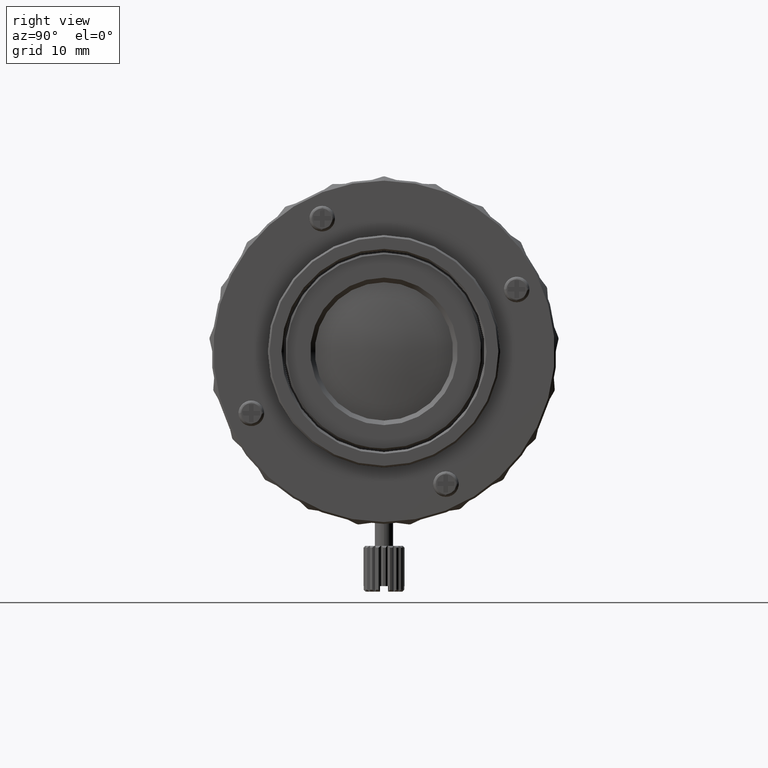
[diagram: clean part render]
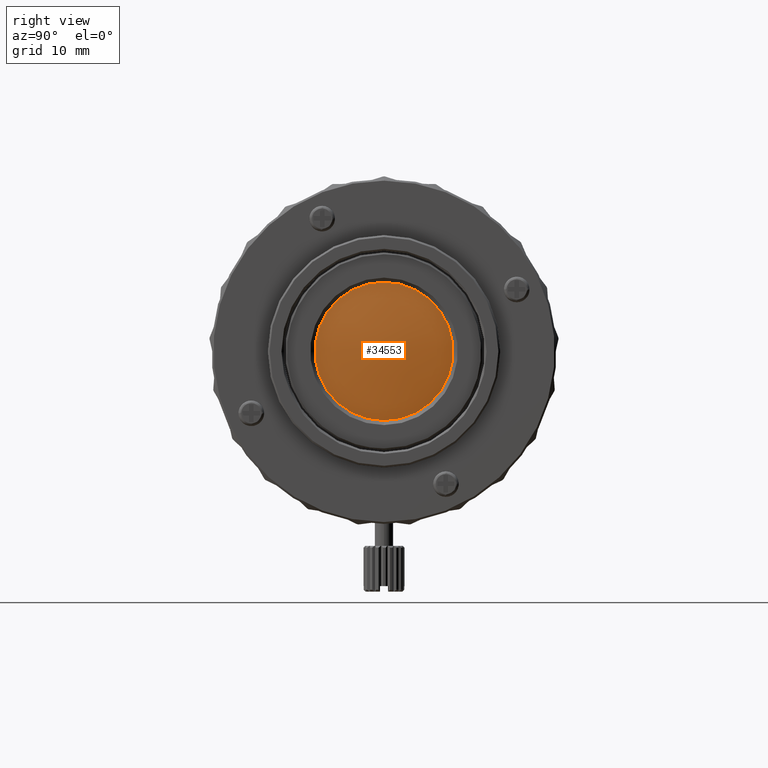
[diagram: same view with one face highlighted and labeled with its STEP entity id]
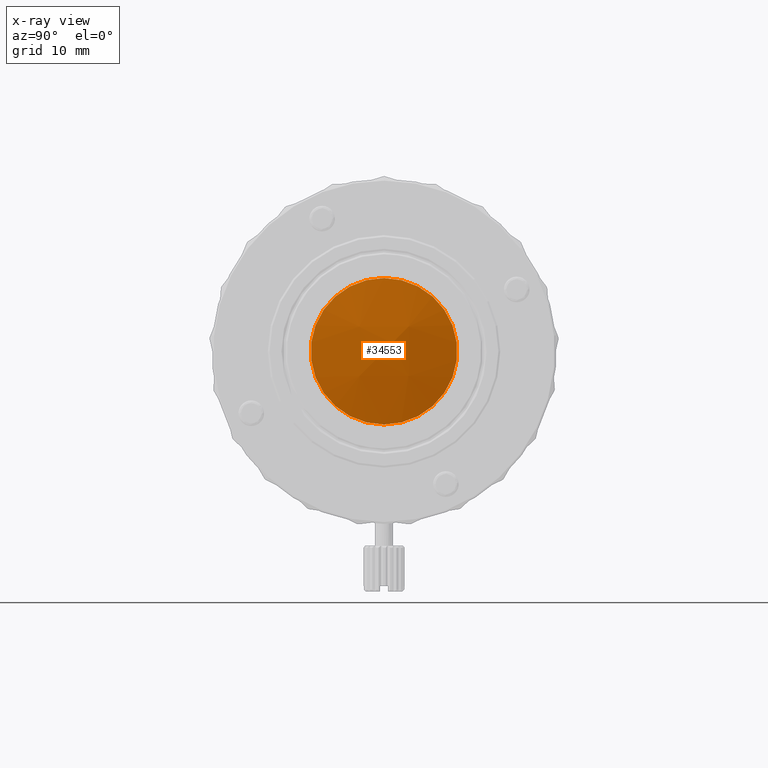
[diagram: x-ray of the same camera — body ghosted, the highlighted face saturated]
A machine part, right view. The second image highlights one B-rep face of the part: STEP entity #34553.
The next image is the same camera in x-ray: the body ghosted, the highlighted face saturated — about 0% of this face is hidden behind the body in this view.
In plain terms, the highlighted face is a freeform B-spline surface patch.
Its self-contained STEP definition (entity closure, byte-faithful):
#918 = VERTEX_POINT ( 'NONE', #29779 ) ;
#1913 = VERTEX_POINT ( 'NONE', #12175 ) ;
#4211 = CARTESIAN_POINT ( 'NONE',  ( 19.37731310281318642, 2.763690633649023454, 2.726874209628666446 ) ) ;
#4394 = FACE_OUTER_BOUND ( 'NONE', #5500, .T. ) ;
#5454 = ORIENTED_EDGE ( 'NONE', *, *, #18482, .F. ) ;
#5500 = EDGE_LOOP ( 'NONE', ( #7183, #5454 ) ) ;
#6507 = CARTESIAN_POINT ( 'NONE',  ( 19.37113640251116564, -2.797717580363479506, -2.776654207306372246 ) ) ;
#6882 = CARTESIAN_POINT ( 'NONE',  ( 18.17229701793990770, -2.709398837956708217, 8.099581192672619778 ) ) ;
#7183 = ORIENTED_EDGE ( 'NONE', *, *, #16481, .F. ) ;
#7900 = CIRCLE ( 'NONE', #32778, 8.004758632779134686 ) ;
#8982 = CARTESIAN_POINT ( 'NONE',  ( 17.89750652457013658, 0.000000000000000000, 0.000000000000000000 ) ) ;
#9755 = CARTESIAN_POINT ( 'NONE',  ( 19.37364725797495524, 2.763423898113838817, -2.776654207306372246 ) ) ;
#10136 = CARTESIAN_POINT ( 'NONE',  ( 18.15697059576733707, -8.224696688649244081, -2.776654207306372246 ) ) ;
#11620 = CIRCLE ( 'NONE', #34066, 8.004758632779134686 ) ;
#12175 = CARTESIAN_POINT ( 'NONE',  ( 17.89750652457013658, 9.922554666685791643E-16, -8.004758632779134686 ) ) ;
#12349 =( BOUNDED_SURFACE ( )  B_SPLINE_SURFACE ( 3, 3, ( 
 ( #29677, #18674, #24733, #15245 ),
 ( #15435, #9755, #6507, #10136 ),
 ( #15812, #4211, #32923, #18478 ),
 ( #30059, #12615, #6882, #21513 ) ),
 .UNSPECIFIED., .F., .F., .T. ) 
 B_SPLINE_SURFACE_WITH_KNOTS ( ( 4, 4 ),
 ( 4, 4 ),
 ( 0.000000000000000000, 1.000000000000000000 ),
 ( 0.000000000000000000, 1.000000000000000000 ),
 .UNSPECIFIED. ) 
 GEOMETRIC_REPRESENTATION_ITEM ( )  RATIONAL_B_SPLINE_SURFACE ( (
 ( 1.000000000000000000, 0.9839822715963862931, 0.9839822715963862931, 1.000000000000000000),
 ( 0.9840572732921437638, 0.9682949111549495891, 0.9682949111549495891, 0.9840572732921437638),
 ( 0.9840572732921437638, 0.9682949111549495891, 0.9682949111549495891, 0.9840572732921437638),
 ( 1.000000000000000000, 0.9839822715963862931, 0.9839822715963862931, 1.000000000000000000) ) ) 
 REPRESENTATION_ITEM ( '' )  SURFACE ( )  );
#12615 = CARTESIAN_POINT ( 'NONE',  ( 18.17472861036496568, 2.676187743495784588, 8.099581192672619778 ) ) ;
#13823 = DIRECTION ( 'NONE',  ( -1.000000000000000000, 0.000000000000000000, 0.000000000000000000 ) ) ;
#15245 = CARTESIAN_POINT ( 'NONE',  ( 16.98598466154583875, -7.962714644285190602, -8.147780309692148393 ) ) ;
#15435 = CARTESIAN_POINT ( 'NONE',  ( 18.16438250755604855, 8.191497185333748376, -2.776654207306372246 ) ) ;
#15812 = CARTESIAN_POINT ( 'NONE',  ( 18.16793162984563637, 8.192287857871244583, 2.726874209628666446 ) ) ;
#16481 = EDGE_CURVE ( 'NONE', #918, #1913, #7900, .T. ) ;
#18478 = CARTESIAN_POINT ( 'NONE',  ( 18.16051900263274277, -8.225490565721266023, 2.726874209628666446 ) ) ;
#18482 = EDGE_CURVE ( 'NONE', #1913, #918, #11620, .T. ) ;
#18674 = CARTESIAN_POINT ( 'NONE',  ( 18.16390640653747468, 2.675400294365447351, -8.147780309692150169 ) ) ;
#19348 = DIRECTION ( 'NONE',  ( 0.000000000000000000, 0.000000000000000000, 1.000000000000000000 ) ) ;
#20571 = DIRECTION ( 'NONE',  ( 0.000000000000000000, 0.000000000000000000, 1.000000000000000000 ) ) ;
#21513 = CARTESIAN_POINT ( 'NONE',  ( 16.99646016829937523, -7.965058305805655436, 8.099581192672621555 ) ) ;
#24733 = CARTESIAN_POINT ( 'NONE',  ( 18.16147552959112232, -2.708601616699020109, -8.147780309692150169 ) ) ;
#29677 = CARTESIAN_POINT ( 'NONE',  ( 16.99316048100476451, 7.930572647900308247, -8.147780309692148393 ) ) ;
#29779 = CARTESIAN_POINT ( 'NONE',  ( 17.89750652457013658, 0.000000000000000000, 8.004758632779134686 ) ) ;
#30059 = CARTESIAN_POINT ( 'NONE',  ( 17.00363809981338648, 7.932906849084259804, 8.099581192672621555 ) ) ;
#31123 = CARTESIAN_POINT ( 'NONE',  ( 17.89750652457013658, 0.000000000000000000, 0.000000000000000000 ) ) ;
#31597 = DIRECTION ( 'NONE',  ( -1.000000000000000000, 0.000000000000000000, 0.000000000000000000 ) ) ;
#32778 = AXIS2_PLACEMENT_3D ( 'NONE', #31123, #13823, #19348 ) ;
#32923 = CARTESIAN_POINT ( 'NONE',  ( 19.37480200499267369, -2.797987626047242937, 2.726874209628666446 ) ) ;
#34066 = AXIS2_PLACEMENT_3D ( 'NONE', #8982, #31597, #20571 ) ;
#34553 = ADVANCED_FACE ( 'NONE', ( #4394 ), #12349, .T. ) ;